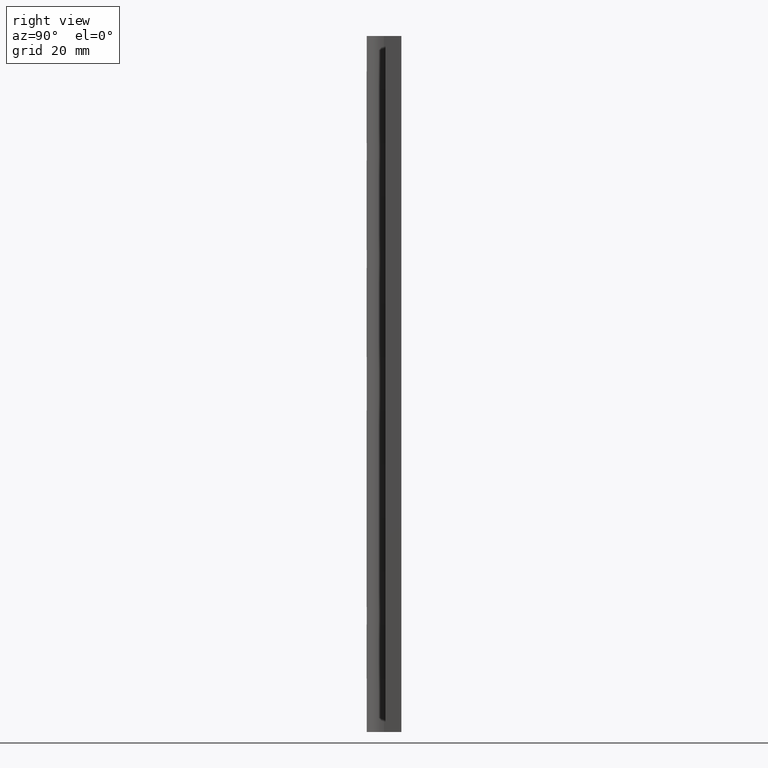
[diagram: clean part render]
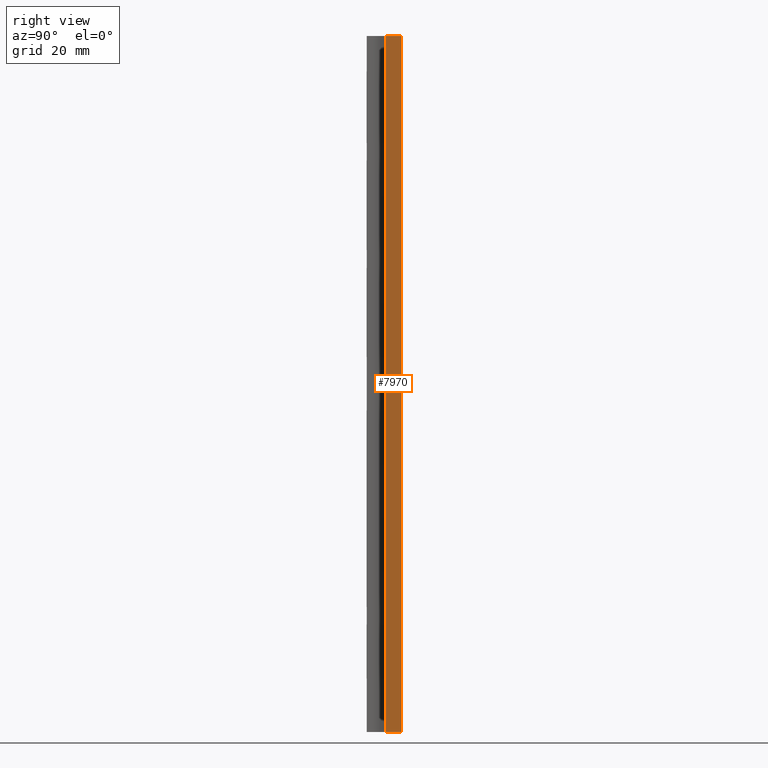
[diagram: same view with one face highlighted and labeled with its STEP entity id]
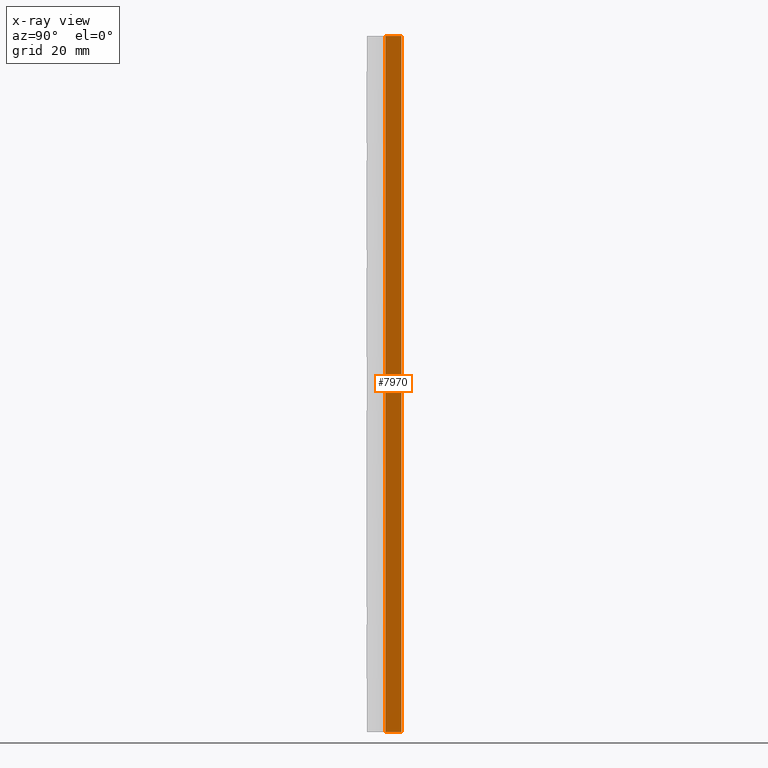
[diagram: x-ray of the same camera — body ghosted, the highlighted face saturated]
A machine part, right view. The second image highlights one B-rep face of the part: STEP entity #7970.
The next image is the same camera in x-ray: the body ghosted, the highlighted face saturated — about 0% of this face is hidden behind the body in this view.
In plain terms, the highlighted face is a freeform B-spline surface patch.
Its self-contained STEP definition (entity closure, byte-faithful):
#7935=CARTESIAN_POINT('',(20.750000000000000,0.100152005814582,136.493491348434790));
#7936=CARTESIAN_POINT('',(20.750000000000000,0.100152005814582,-6.493502835306298));
#7937=CARTESIAN_POINT('',(20.750000000000000,3.399852074651689,136.493491348434790));
#7938=CARTESIAN_POINT('',(20.750000000000000,3.399852074651689,-6.493502835306298));
#7939=B_SPLINE_SURFACE_WITH_KNOTS('',1,1,((#7935,#7937),(#7936,#7938)),.UNSPECIFIED.,.F.,.F.,.U.,(2,2),(2,2),(0.0,142.986994183741100),(0.0,3.299700068837107),.UNSPECIFIED.);
#7940=CARTESIAN_POINT('',(20.750000000000000,0.250002000000000,129.999991999999990));
#7941=VERTEX_POINT('',#7940);
#7942=CARTESIAN_POINT('',(20.750000000000000,3.250002000000000,129.999991999999990));
#7943=VERTEX_POINT('',#7942);
#7944=CARTESIAN_POINT('',(20.750000000000000,0.250002000000000,129.999991999999990));
#7945=CARTESIAN_POINT('',(20.750000000000000,3.250002000000000,129.999991999999990));
#7946=QUASI_UNIFORM_CURVE('',1,(#7944,#7945),.UNSPECIFIED.,.F.,.U.);
#7947=EDGE_CURVE('',#7941,#7943,#7946,.T.);
#7948=ORIENTED_EDGE('',*,*,#7947,.F.);
#7949=CARTESIAN_POINT('',(20.750000000000000,0.250002000000000,0.0));
#7950=VERTEX_POINT('',#7949);
#7951=CARTESIAN_POINT('',(20.750000000000000,0.250002000000000,0.0));
#7952=CARTESIAN_POINT('',(20.750000000000000,0.250002000000000,129.999991999999990));
#7953=QUASI_UNIFORM_CURVE('',1,(#7951,#7952),.UNSPECIFIED.,.F.,.U.);
#7954=EDGE_CURVE('',#7950,#7941,#7953,.T.);
#7955=ORIENTED_EDGE('',*,*,#7954,.F.);
#7956=CARTESIAN_POINT('',(20.750000000000000,3.250002000000000,0.0));
#7957=VERTEX_POINT('',#7956);
#7958=CARTESIAN_POINT('',(20.750000000000000,0.250002000000000,0.0));
#7959=CARTESIAN_POINT('',(20.750000000000000,3.250002000000000,0.0));
#7960=QUASI_UNIFORM_CURVE('',1,(#7958,#7959),.UNSPECIFIED.,.F.,.U.);
#7961=EDGE_CURVE('',#7950,#7957,#7960,.T.);
#7962=ORIENTED_EDGE('',*,*,#7961,.T.);
#7963=CARTESIAN_POINT('',(20.750000000000000,3.250002000000000,0.0));
#7964=CARTESIAN_POINT('',(20.750000000000000,3.250002000000000,129.999991999999990));
#7965=QUASI_UNIFORM_CURVE('',1,(#7963,#7964),.UNSPECIFIED.,.F.,.U.);
#7966=EDGE_CURVE('',#7957,#7943,#7965,.T.);
#7967=ORIENTED_EDGE('',*,*,#7966,.T.);
#7968=EDGE_LOOP('',(#7948,#7955,#7962,#7967));
#7969=FACE_OUTER_BOUND('',#7968,.T.);
#7970=ADVANCED_FACE('',(#7969),#7939,.T.);